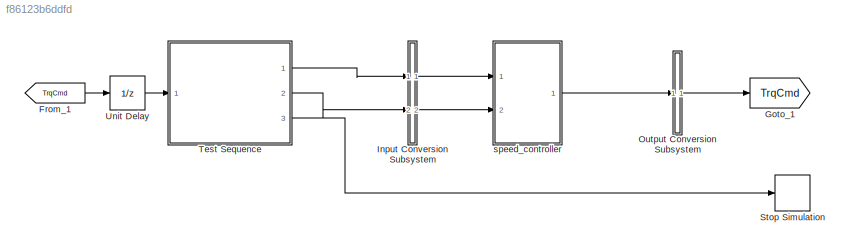
MODEL slx_f86123b6ddfd
KIND model
CONFIG AbsTol = auto
CONFIG EnableMultiTasking = off
CONFIG FixedStep = double(Ts)
CONFIG MaxStep = auto
CONFIG MinStep = auto
CONFIG RelTol = 1e-3
CONFIG SampleTimeConstraint = Unconstrained
CONFIG SolverName = FixedStepDiscrete
CONFIG StartTime = 0.0
CONFIG StopTime = 500
BLOCK [From] From_1
  GotoTag = TrqCmd
BLOCK [Goto] Goto_1
  GotoTag = TrqCmd
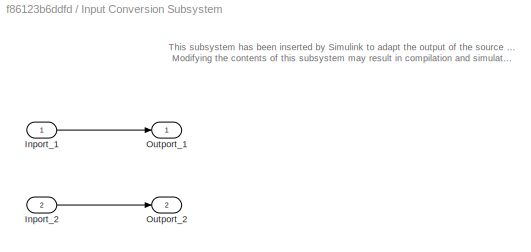
BLOCK [SubSystem] Input Conversion Subsystem
  AttributesFormatString = %<Description>
  Description = Signal spec.\nand routing
  Permissions = ReadOnly
  PermitHierarchicalResolution = ExplicitOnly
  Ports = [2, 2]
  RequestExecContextInheritance = off
  Tag = __SLT_ICS__
  UserDataPersistent = on
BLOCK [Inport] Input Conversion Subsystem/Inport_1
BLOCK [Inport] Input Conversion Subsystem/Inport_2
  Port = 2
BLOCK [Outport] Input Conversion Subsystem/Outport_1
BLOCK [Outport] Input Conversion Subsystem/Outport_2
  Port = 2
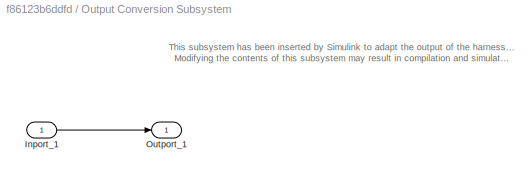
BLOCK [SubSystem] Output Conversion Subsystem
  AttributesFormatString = %<Description>
  Description = Signal spec.\nand routing
  Permissions = ReadOnly
  PermitHierarchicalResolution = ExplicitOnly
  Ports = [1, 1]
  RequestExecContextInheritance = off
  Tag = __SLT_OCS__
  UserDataPersistent = on
BLOCK [Inport] Output Conversion Subsystem/Inport_1
BLOCK [Outport] Output Conversion Subsystem/Outport_1
BLOCK [Stop] Stop Simulation
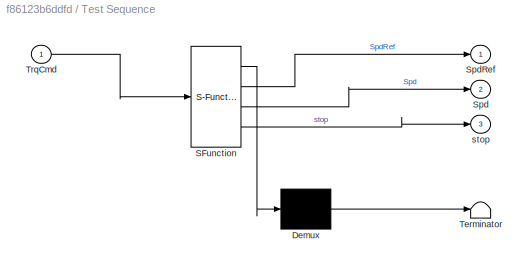
BLOCK [SubSystem] Test Sequence
  ErrorFcn = Stateflow.Translate.translate
  PermitHierarchicalResolution = ExplicitOnly
  Ports = [1, 3]
  RequestExecContextInheritance = off
  SFBlockType = Test Sequence
  TreatAsAtomicUnit = on
BLOCK [Demux] Test Sequence/ Demux 
  Outputs = 1
  Ports = [1, 1]
BLOCK [S-Function] Test Sequence/ SFunction 
  EnableBusSupport = on
  FunctionName = sf_sfun
  PortCounts = [1 4]
  Ports = [1, 4]
  SFcnIsStateOwnerBlock = off
  SFunctionDeploymentMode = off
  Tag = Stateflow S-Function 4
BLOCK [Terminator] Test Sequence/ Terminator 
BLOCK [Outport] Test Sequence/Spd
  Port = 2
BLOCK [Outport] Test Sequence/SpdRef
BLOCK [Inport] Test Sequence/TrqCmd
BLOCK [Outport] Test Sequence/stop
  Port = 3
BLOCK [UnitDelay] Unit Delay
  HasFrameUpgradeWarning = on
  SampleTime = -1
BLOCK [ModelReference] speed_controller
  ModelNameDialog = speed_controller
  ModelReferenceVersion = 1.4
  Ports = [2, 1]
ANNOTATION Input Conversion Subsystem: This subsystem has been inserted by Simulink to adapt the output of the source blocks to the interface required by the harnessed component. Modifying the contents of this subsystem may result in compilation and simulation failure.
ANNOTATION Output Conversion Subsystem: This subsystem has been inserted by Simulink to adapt the output of the harnessed component to the interface required by the sink blocks. Modifying the contents of this subsystem may result in compilation and simulation failure.
LINE From_1:1 -> Unit Delay:1
LINE Input Conversion Subsystem/Inport_1:1 -> Input Conversion Subsystem/Outport_1:1
LINE Input Conversion Subsystem/Inport_2:1 -> Input Conversion Subsystem/Outport_2:1
LINE Input Conversion Subsystem:1 -> speed_controller:1
LINE Input Conversion Subsystem:2 -> speed_controller:2
LINE Output Conversion Subsystem/Inport_1:1 -> Output Conversion Subsystem/Outport_1:1
LINE Output Conversion Subsystem:1 -> Goto_1:1
LINE Test Sequence:1 -> Input Conversion Subsystem:1
LINE Test Sequence:2 -> Input Conversion Subsystem:2
LINE Test Sequence:3 -> Stop Simulation:1
LINE Unit Delay:1 -> Test Sequence:1
LINE speed_controller:1 -> Output Conversion Subsystem:1
CHART Test Sequence states=5 transitions=5
  STATE_LABEL 'step_1\n\n%% Initialize data outputs.\nSpdRef = 0;\nSpd = 0;'
  STATE_LABEL "check_1\nassert(abs(TrqCmd)<eps,'step 1: torque command is not zero');\n"
  STATE_LABEL 'step_2\nSpd=1;'
  STATE_LABEL "check_2\nassert(TrqCmd<0,'step 2: torque command is not zero');"
  STATE_LABEL 'stop\nstop=true;'
